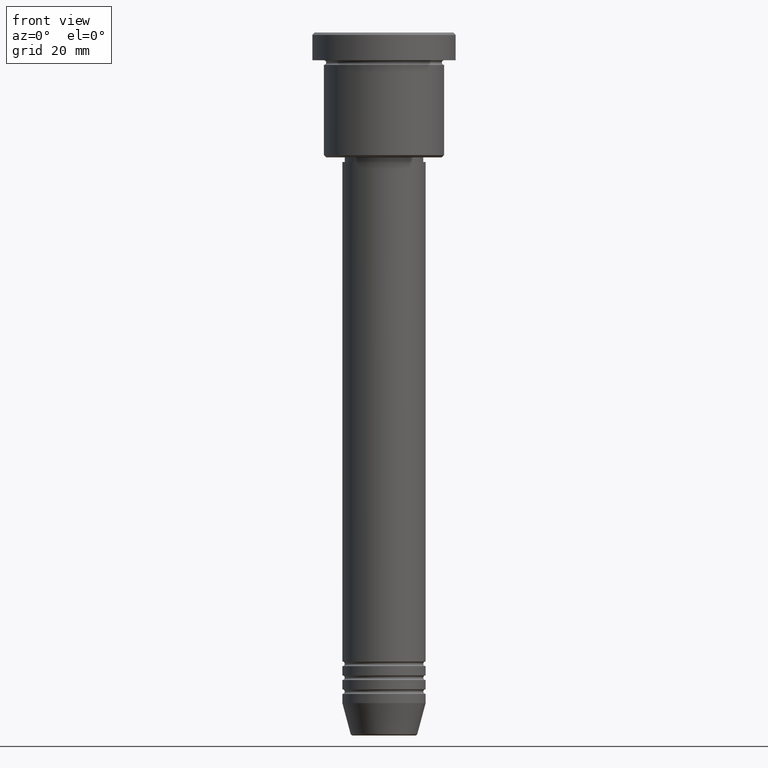
[diagram: clean part render]
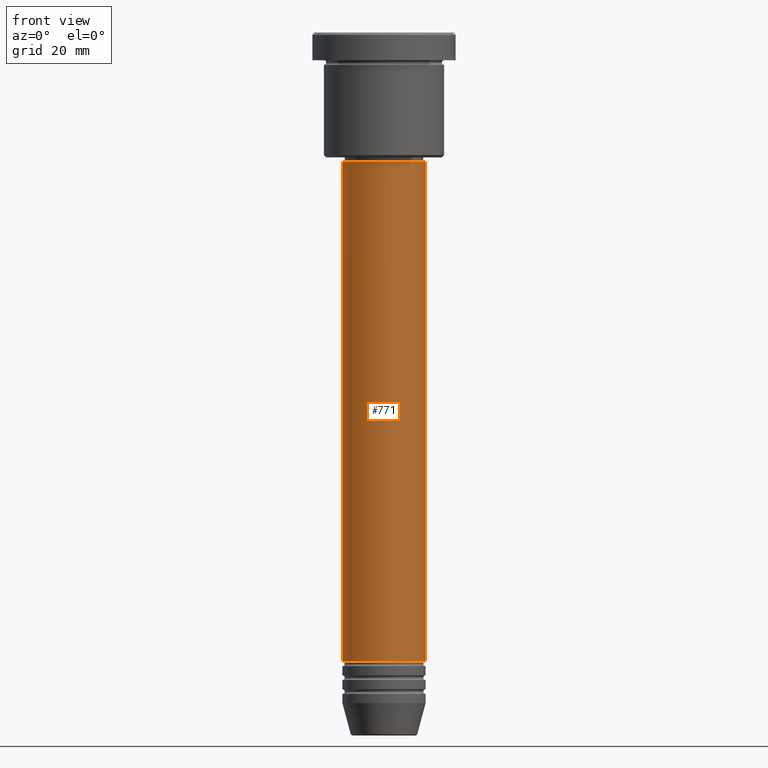
[diagram: same view with one face highlighted and labeled with its STEP entity id]
A machine part, front view. The second image highlights one B-rep face of the part: STEP entity #771.
In plain terms, the highlighted cylindrical surface (partial cylindrical patch) has radius 9 mm, axis along (-0, -0, 1).
Its self-contained STEP definition (entity closure, byte-faithful):
#1 = VERTEX_POINT ( 'NONE', #148 ) ;
#11 = DIRECTION ( 'NONE',  ( -0.000000000000000000, -0.000000000000000000, 1.000000000000000000 ) ) ;
#26 = CARTESIAN_POINT ( 'NONE',  ( -9.000000000000000000, 1.102182119232617714E-15, 0.000000000000000000 ) ) ;
#34 = VERTEX_POINT ( 'NONE', #505 ) ;
#38 = CARTESIAN_POINT ( 'NONE',  ( 0.000000000000000000, 0.000000000000000000, 0.000000000000000000 ) ) ;
#92 = LINE ( 'NONE', #462, #982 ) ;
#148 = CARTESIAN_POINT ( 'NONE',  ( 9.000000000000000000, 0.000000000000000000, -27.99999999999998934 ) ) ;
#183 = CARTESIAN_POINT ( 'NONE',  ( -9.000000000000000000, 1.102182119232617714E-15, -135.9999999999999432 ) ) ;
#199 = CARTESIAN_POINT ( 'NONE',  ( 0.000000000000000000, 0.000000000000000000, -135.9999999999999432 ) ) ;
#213 = EDGE_CURVE ( 'NONE', #34, #1, #439, .T. ) ;
#234 = CARTESIAN_POINT ( 'NONE',  ( 9.000000000000000000, 0.000000000000000000, -135.9999999999999432 ) ) ;
#268 = AXIS2_PLACEMENT_3D ( 'NONE', #38, #500, #494 ) ;
#301 = FACE_OUTER_BOUND ( 'NONE', #464, .T. ) ;
#313 = VERTEX_POINT ( 'NONE', #183 ) ;
#361 = CARTESIAN_POINT ( 'NONE',  ( 0.000000000000000000, 0.000000000000000000, -27.99999999999998934 ) ) ;
#439 = CIRCLE ( 'NONE', #477, 9.000000000000000000 ) ;
#441 = AXIS2_PLACEMENT_3D ( 'NONE', #199, #1054, #568 ) ;
#445 = ORIENTED_EDGE ( 'NONE', *, *, #765, .F. ) ;
#462 = CARTESIAN_POINT ( 'NONE',  ( 9.000000000000000000, 0.000000000000000000, 0.000000000000000000 ) ) ;
#464 = EDGE_LOOP ( 'NONE', ( #445, #843, #820, #1111 ) ) ;
#477 = AXIS2_PLACEMENT_3D ( 'NONE', #361, #1099, #530 ) ;
#494 = DIRECTION ( 'NONE',  ( 1.000000000000000000, 0.000000000000000000, 0.000000000000000000 ) ) ;
#500 = DIRECTION ( 'NONE',  ( -0.000000000000000000, -0.000000000000000000, 1.000000000000000000 ) ) ;
#505 = CARTESIAN_POINT ( 'NONE',  ( -9.000000000000000000, 1.102182119232617714E-15, -27.99999999999998934 ) ) ;
#530 = DIRECTION ( 'NONE',  ( 1.000000000000000000, 0.000000000000000000, 0.000000000000000000 ) ) ;
#534 = CIRCLE ( 'NONE', #441, 9.000000000000000000 ) ;
#568 = DIRECTION ( 'NONE',  ( 1.000000000000000000, 0.000000000000000000, 0.000000000000000000 ) ) ;
#594 = EDGE_CURVE ( 'NONE', #952, #1, #92, .T. ) ;
#765 = EDGE_CURVE ( 'NONE', #313, #34, #1048, .T. ) ;
#771 = ADVANCED_FACE ( 'NONE', ( #301 ), #936, .T. ) ;
#811 = EDGE_CURVE ( 'NONE', #313, #952, #534, .T. ) ;
#820 = ORIENTED_EDGE ( 'NONE', *, *, #594, .T. ) ;
#843 = ORIENTED_EDGE ( 'NONE', *, *, #811, .T. ) ;
#904 = VECTOR ( 'NONE', #1113, 1000.000000000000000 ) ;
#936 = CYLINDRICAL_SURFACE ( 'NONE', #268, 9.000000000000000000 ) ;
#952 = VERTEX_POINT ( 'NONE', #234 ) ;
#982 = VECTOR ( 'NONE', #11, 1000.000000000000000 ) ;
#1048 = LINE ( 'NONE', #26, #904 ) ;
#1054 = DIRECTION ( 'NONE',  ( -0.000000000000000000, -0.000000000000000000, 1.000000000000000000 ) ) ;
#1099 = DIRECTION ( 'NONE',  ( -0.000000000000000000, -0.000000000000000000, 1.000000000000000000 ) ) ;
#1111 = ORIENTED_EDGE ( 'NONE', *, *, #213, .F. ) ;
#1113 = DIRECTION ( 'NONE',  ( -0.000000000000000000, -0.000000000000000000, 1.000000000000000000 ) ) ;